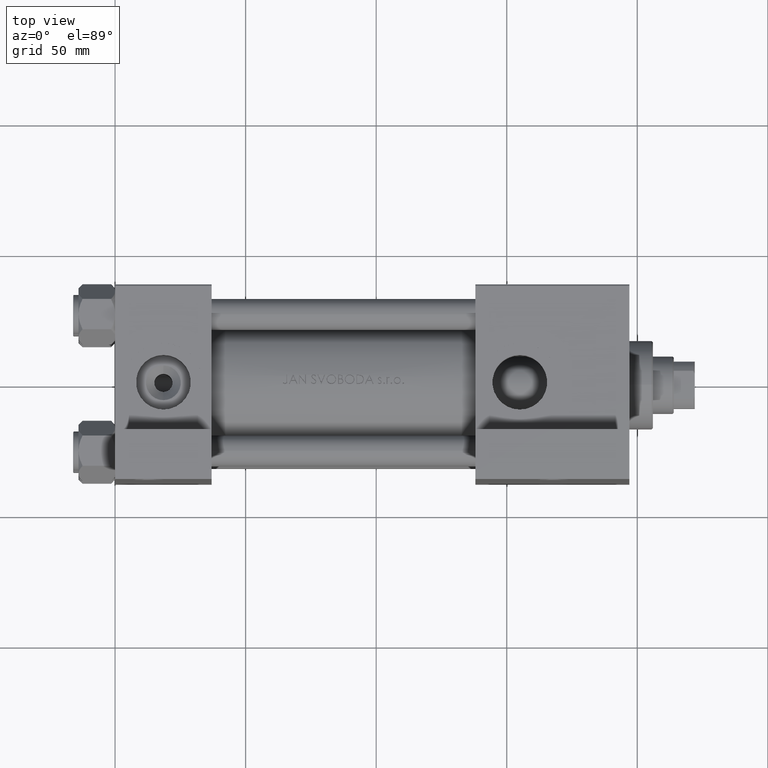
[diagram: clean part render]
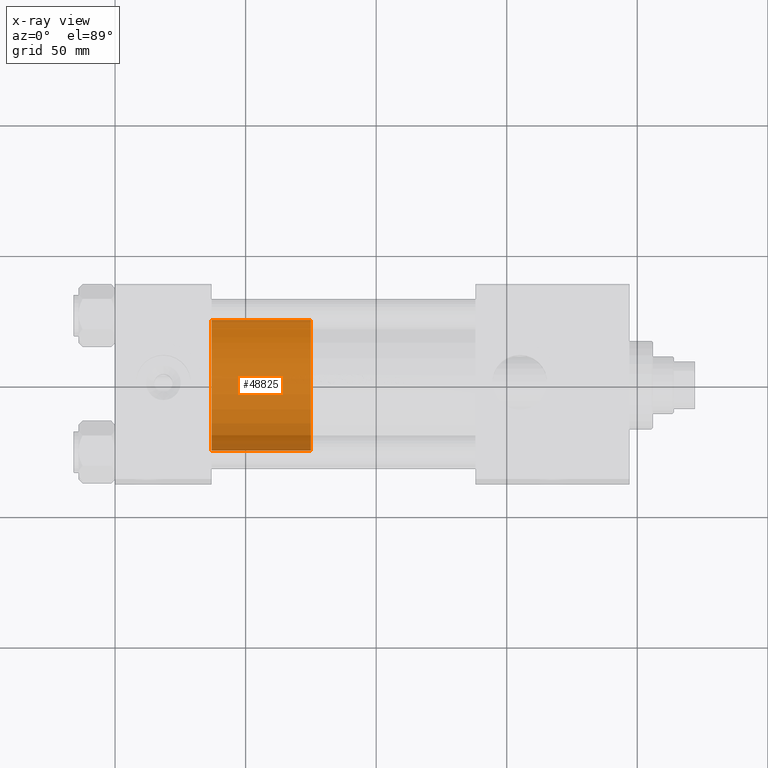
[diagram: x-ray — body ghosted, one internal face saturated and labeled with its STEP entity id]
A machine part, top view, then the same camera in x-ray: the body is ghosted and one INTERNAL B-rep face — a face not visible from any outside direction — is saturated and labeled: STEP entity #48825.
In plain terms, the highlighted cylindrical surface (partial cylindrical patch) has radius 25 mm, axis along (-1, 0, 0).
Its self-contained STEP definition (entity closure, byte-faithful):
#22 = DIRECTION ( 'NONE',  ( 0.000000000000000000, 0.000000000000000000, 1.000000000000000000 ) ) ;
#1063 = DIRECTION ( 'NONE',  ( 1.000000000000000000, 0.000000000000000000, 0.000000000000000000 ) ) ;
#3531 = CARTESIAN_POINT ( 'NONE',  ( 25.00000000000000000, 3.061616997868383043E-15, 38.00000000000000000 ) ) ;
#4414 = EDGE_CURVE ( 'NONE', #47642, #29643, #43956, .T. ) ;
#7225 = CARTESIAN_POINT ( 'NONE',  ( 0.000000000000000000, 0.000000000000000000, 38.00000000000000000 ) ) ;
#8001 = VERTEX_POINT ( 'NONE', #22595 ) ;
#8223 = DIRECTION ( 'NONE',  ( -0.000000000000000000, -0.000000000000000000, -1.000000000000000000 ) ) ;
#10407 = DIRECTION ( 'NONE',  ( -0.000000000000000000, -0.000000000000000000, -1.000000000000000000 ) ) ;
#10719 = DIRECTION ( 'NONE',  ( 1.000000000000000000, 0.000000000000000000, 0.000000000000000000 ) ) ;
#11143 = VERTEX_POINT ( 'NONE', #40539 ) ;
#12285 = ORIENTED_EDGE ( 'NONE', *, *, #18951, .F. ) ;
#12902 = CIRCLE ( 'NONE', #43951, 25.00000000000000000 ) ;
#12965 = DIRECTION ( 'NONE',  ( 0.000000000000000000, 0.000000000000000000, 1.000000000000000000 ) ) ;
#14152 = CARTESIAN_POINT ( 'NONE',  ( 25.00000000000000000, 3.061616997868383043E-15, 38.00000000000000000 ) ) ;
#18951 = EDGE_CURVE ( 'NONE', #29643, #11143, #46575, .T. ) ;
#19950 = CARTESIAN_POINT ( 'NONE',  ( 0.000000000000000000, 0.000000000000000000, 0.000000000000000000 ) ) ;
#21749 = ORIENTED_EDGE ( 'NONE', *, *, #40872, .T. ) ;
#22595 = CARTESIAN_POINT ( 'NONE',  ( 25.00000000000000000, 3.061616997868383043E-15, 0.000000000000000000 ) ) ;
#22665 = CARTESIAN_POINT ( 'NONE',  ( -25.00000000000000000, 0.000000000000000000, 38.00000000000000000 ) ) ;
#27428 = CARTESIAN_POINT ( 'NONE',  ( 0.000000000000000000, 0.000000000000000000, 38.00000000000000000 ) ) ;
#28153 = AXIS2_PLACEMENT_3D ( 'NONE', #27428, #48679, #45863 ) ;
#29643 = VERTEX_POINT ( 'NONE', #34915 ) ;
#29655 = VECTOR ( 'NONE', #10407, 1000.000000000000000 ) ;
#30231 = ORIENTED_EDGE ( 'NONE', *, *, #4414, .F. ) ;
#31609 = EDGE_LOOP ( 'NONE', ( #30231, #36924, #21749, #12285 ) ) ;
#34432 = AXIS2_PLACEMENT_3D ( 'NONE', #7225, #22, #10719 ) ;
#34915 = CARTESIAN_POINT ( 'NONE',  ( -25.00000000000000000, 0.000000000000000000, 38.00000000000000000 ) ) ;
#36924 = ORIENTED_EDGE ( 'NONE', *, *, #42239, .T. ) ;
#40539 = CARTESIAN_POINT ( 'NONE',  ( -25.00000000000000000, 0.000000000000000000, 0.000000000000000000 ) ) ;
#40872 = EDGE_CURVE ( 'NONE', #8001, #11143, #12902, .T. ) ;
#42239 = EDGE_CURVE ( 'NONE', #47642, #8001, #48285, .T. ) ;
#42368 = FACE_OUTER_BOUND ( 'NONE', #31609, .T. ) ;
#43951 = AXIS2_PLACEMENT_3D ( 'NONE', #19950, #12965, #1063 ) ;
#43956 = CIRCLE ( 'NONE', #34432, 25.00000000000000000 ) ;
#45122 = VECTOR ( 'NONE', #8223, 1000.000000000000000 ) ;
#45863 = DIRECTION ( 'NONE',  ( -1.000000000000000000, 0.000000000000000000, 0.000000000000000000 ) ) ;
#46359 = CYLINDRICAL_SURFACE ( 'NONE', #28153, 25.00000000000000000 ) ;
#46575 = LINE ( 'NONE', #22665, #45122 ) ;
#47642 = VERTEX_POINT ( 'NONE', #3531 ) ;
#48285 = LINE ( 'NONE', #14152, #29655 ) ;
#48679 = DIRECTION ( 'NONE',  ( -0.000000000000000000, -0.000000000000000000, -1.000000000000000000 ) ) ;
#48825 = ADVANCED_FACE ( 'NONE', ( #42368 ), #46359, .T. ) ;